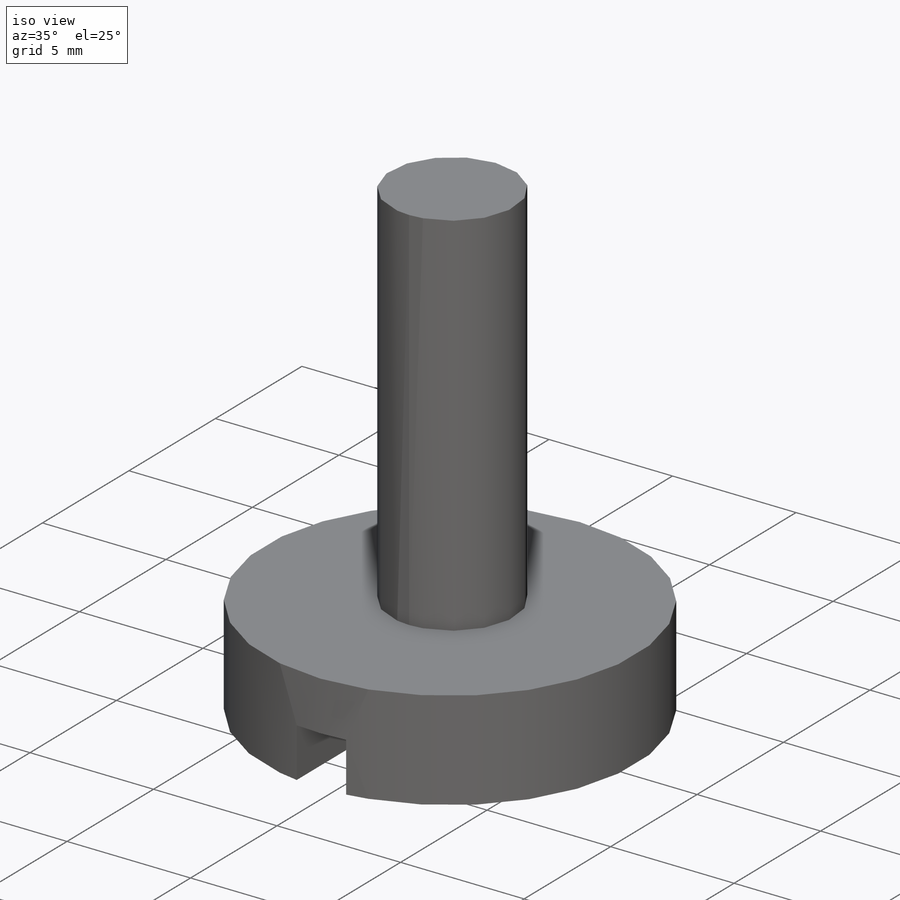
[diagram: iso view]
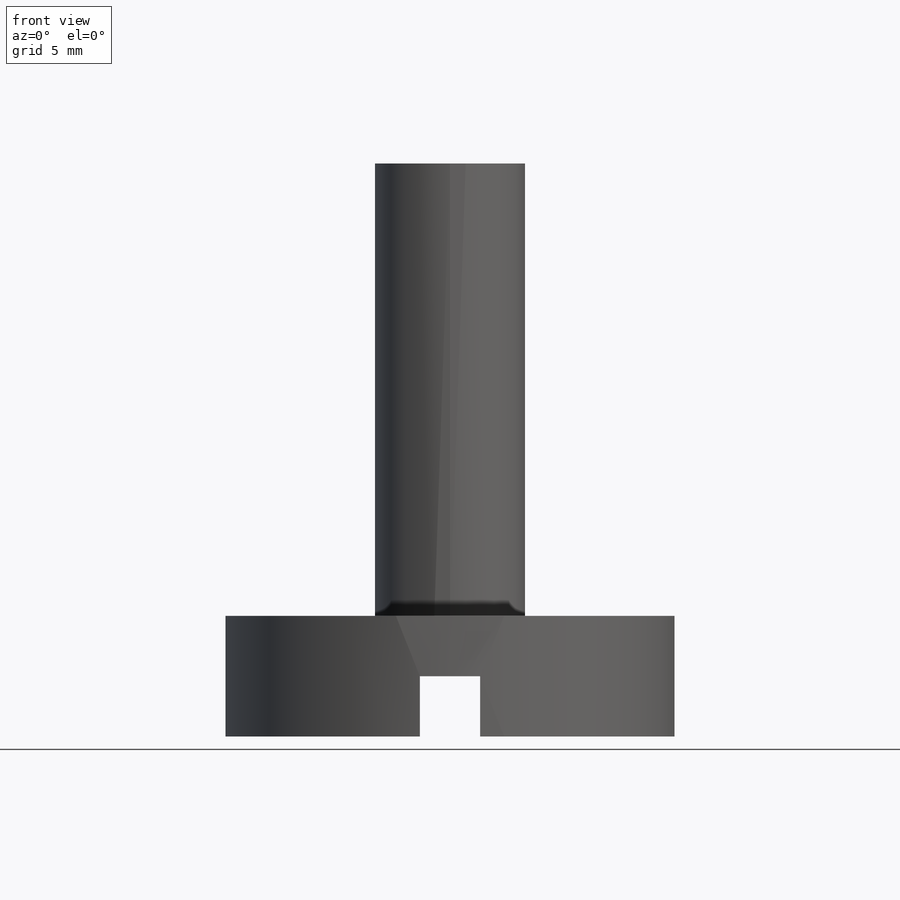
[diagram: front view]
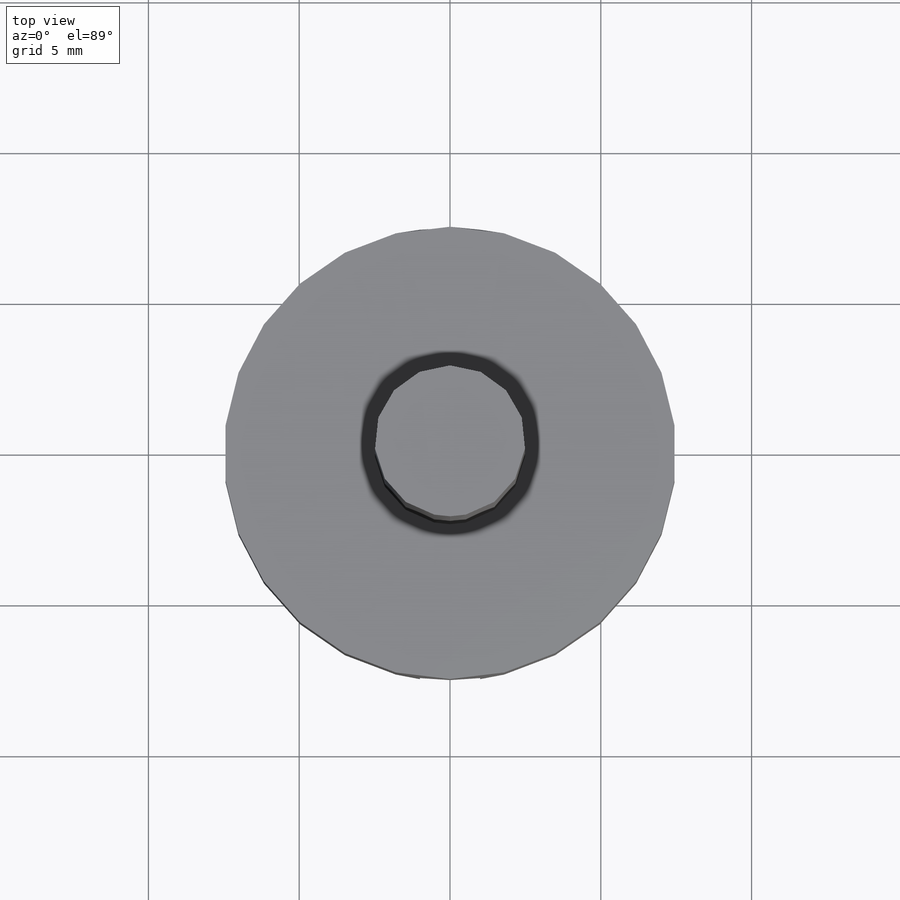
[diagram: top view]
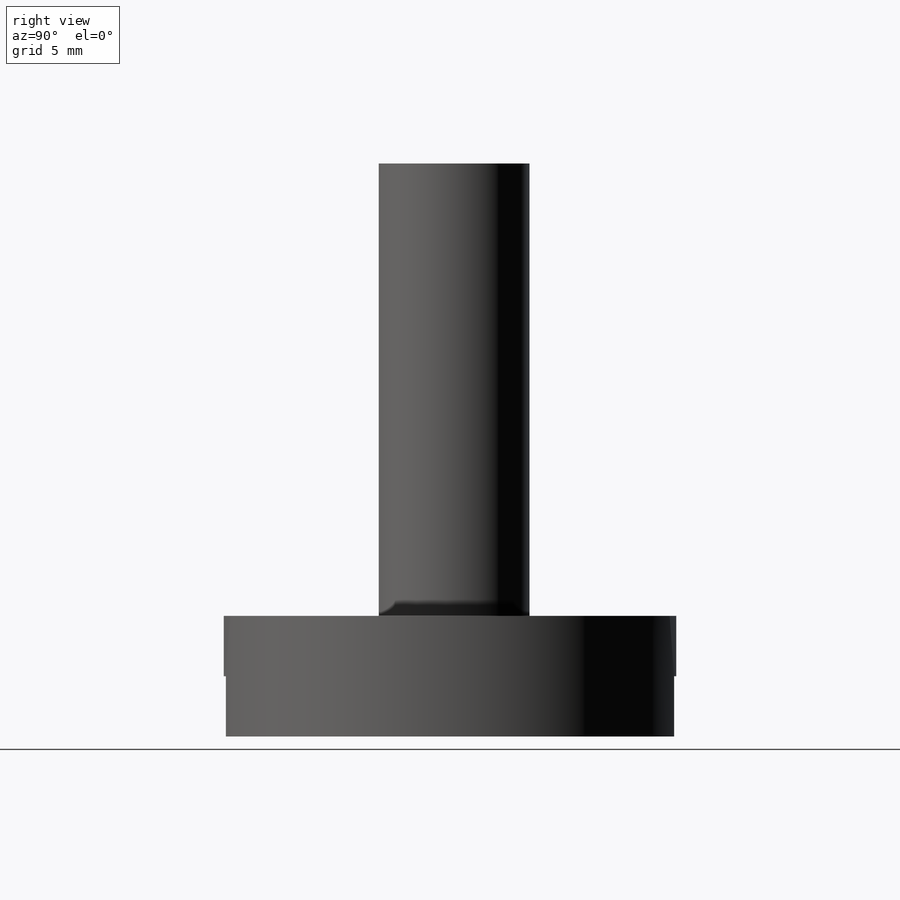
[diagram: right view]
SOLIDWORKS PART (.sldprt)
format: sldprt  version: not decoded by parser v0  size: 354,304 bytes
history: native  units: mm
features: plane x3, sketch x3, extrude x2, material x1, cut_extrude x1 (+8 scaffold rows collapsed)
feature tree (18):
  scaffold x8  (default folders/planes/origin — collapsed)
  material  "Материал <не указан>"
  plane  "Спереди"
  plane  "Сверху"
  plane  "Справа"
  sketch  "Эскиз1"  dims[D1=15.0mm]
  extrude  "Бобышка-Вытянуть1"  Depth=4mm
  sketch  "Эскиз2"  dims[D1=5.0mm]
  extrude  "Бобышка-Вытянуть2"  Depth=15mm
  sketch  "Эскиз3"  dims[c1.D1=~16.363697mm c1.D2=~2.527212mm c2.D1=2.0mm c2.D2=2.0mm]
  cut_extrude  "Вырез-Вытянуть1"  Depth=2mm
decode coverage: 6 of 6 modeling features carry decoded parameters
note: ~ marks probable driven/reference dimensions
note: suppression state not decoded; provenance and decode notes live in map.json
